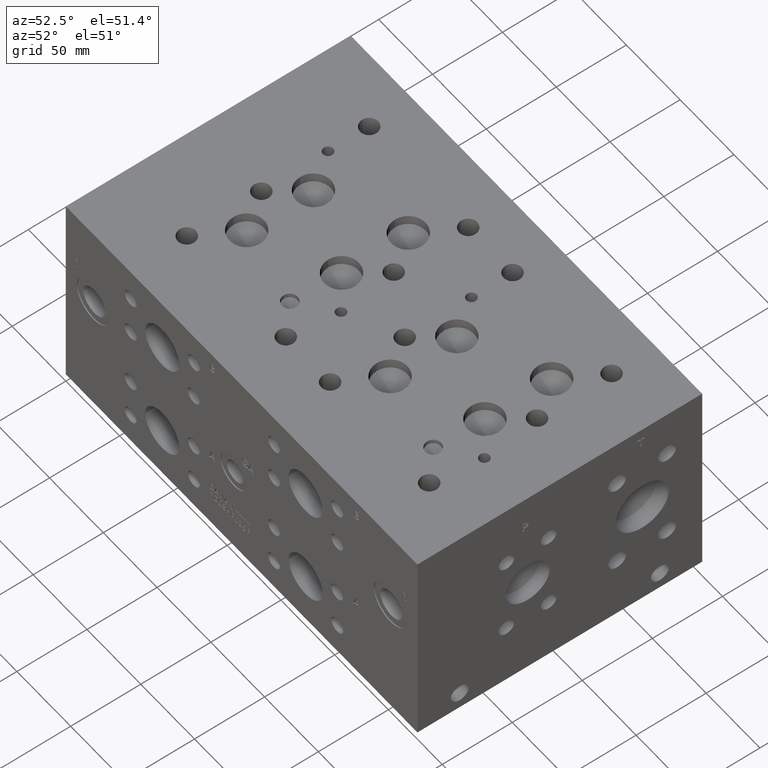
[diagram: clean part render]
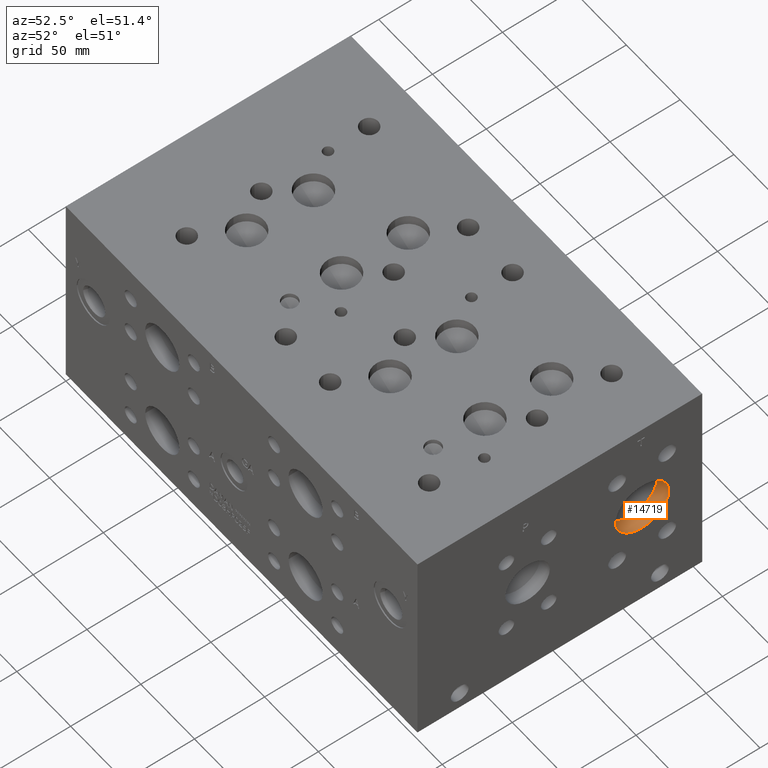
[diagram: same view with one face highlighted and labeled with its STEP entity id]
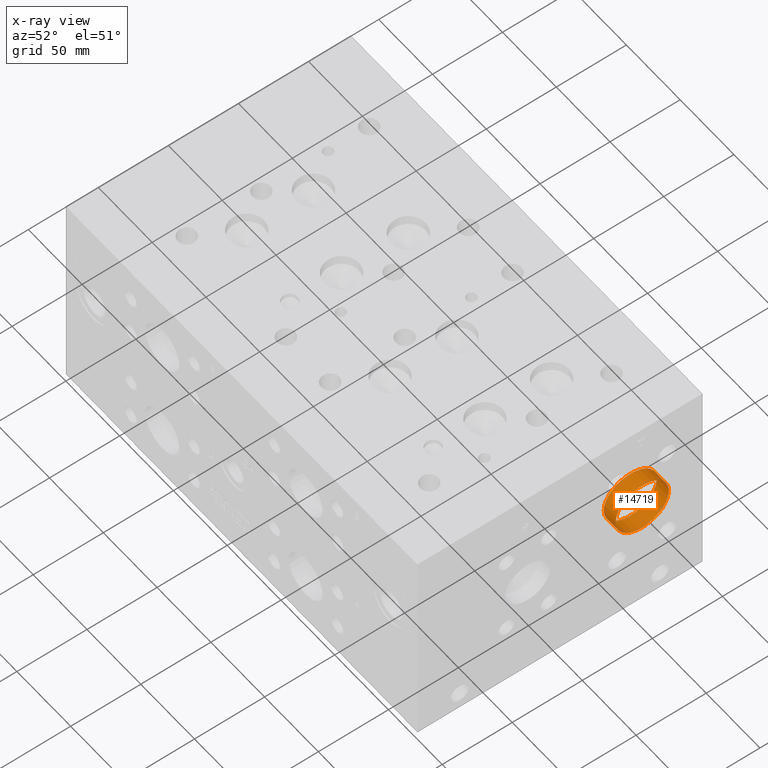
[diagram: x-ray of the same camera — body ghosted, the highlighted face saturated]
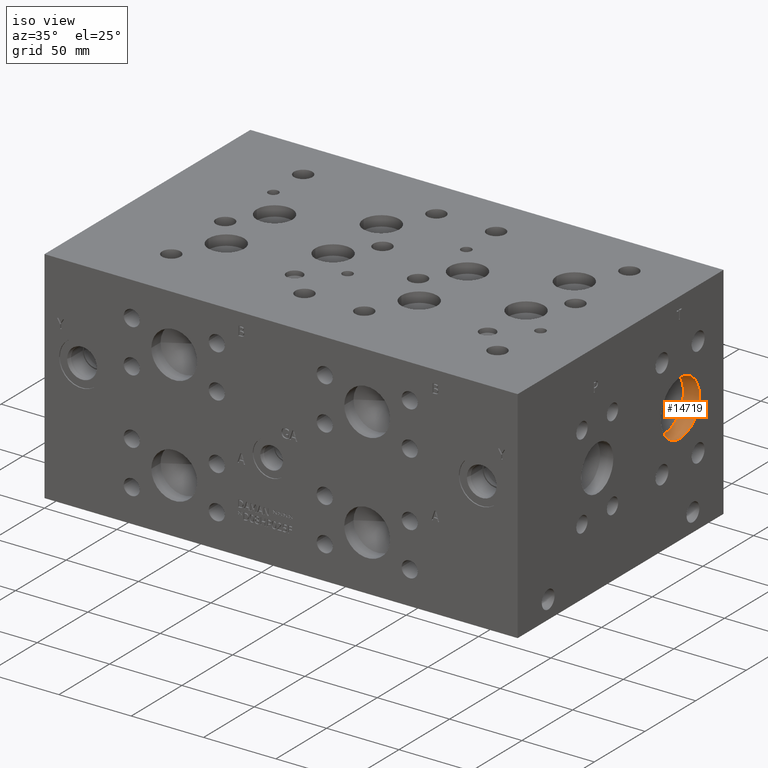
[diagram: same view with one face highlighted and labeled with its STEP entity id]
A machine part, auxiliary view. The second image highlights one B-rep face of the part: STEP entity #14719.
The next image is the same camera in x-ray: the body ghosted, the highlighted face saturated — about 0% of this face is hidden behind the body in this view.
A second angle (iso view) of the same face is appended — the face is thin or edge-on in the first view.
In plain terms, the highlighted cylindrical surface (bore or boss wall) has radius 19.05 mm, axis along (1, 0, 0).
Its self-contained STEP definition (entity closure, byte-faithful):
#35=CYLINDRICAL_SURFACE('',#15507,19.05);
#229=CIRCLE('',#14975,19.05);
#230=CIRCLE('',#14976,19.05);
#375=CIRCLE('',#15505,19.05);
#376=CIRCLE('',#15506,19.05);
#1842=FACE_OUTER_BOUND('',#2723,.T.);
#2723=EDGE_LOOP('',(#12407,#12408,#12409,#12410,#12411,#12412));
#4125=LINE('',#24666,#5407);
#5407=VECTOR('',#18258,19.05);
#5927=VERTEX_POINT('',#19781);
#5928=VERTEX_POINT('',#19782);
#6958=VERTEX_POINT('',#24659);
#6959=VERTEX_POINT('',#24660);
#7407=EDGE_CURVE('',#5927,#5928,#229,.T.);
#7408=EDGE_CURVE('',#5928,#5927,#230,.T.);
#8896=EDGE_CURVE('',#6958,#6959,#375,.T.);
#8898=EDGE_CURVE('',#6959,#6958,#376,.T.);
#8899=EDGE_CURVE('',#5928,#6959,#4125,.T.);
#12407=ORIENTED_EDGE('',*,*,#7407,.F.);
#12408=ORIENTED_EDGE('',*,*,#7408,.F.);
#12409=ORIENTED_EDGE('',*,*,#8899,.T.);
#12410=ORIENTED_EDGE('',*,*,#8896,.F.);
#12411=ORIENTED_EDGE('',*,*,#8898,.F.);
#12412=ORIENTED_EDGE('',*,*,#8899,.F.);
#14719=ADVANCED_FACE('',(#1842),#35,.F.);
#14975=AXIS2_PLACEMENT_3D('',#19783,#16130,#16131);
#14976=AXIS2_PLACEMENT_3D('',#19784,#16132,#16133);
#15505=AXIS2_PLACEMENT_3D('',#24661,#18251,#18252);
#15506=AXIS2_PLACEMENT_3D('',#24664,#18254,#18255);
#15507=AXIS2_PLACEMENT_3D('',#24665,#18256,#18257);
#16130=DIRECTION('center_axis',(-1.,0.,0.));
#16131=DIRECTION('ref_axis',(0.,1.,0.));
#16132=DIRECTION('center_axis',(-1.,0.,0.));
#16133=DIRECTION('ref_axis',(0.,1.,0.));
#18251=DIRECTION('center_axis',(1.,0.,0.));
#18252=DIRECTION('ref_axis',(0.,1.,0.));
#18254=DIRECTION('center_axis',(1.,0.,0.));
#18255=DIRECTION('ref_axis',(0.,1.,0.));
#18256=DIRECTION('center_axis',(1.,0.,0.));
#18257=DIRECTION('ref_axis',(0.,1.,0.));
#18258=DIRECTION('',(-1.,0.,0.));
#19781=CARTESIAN_POINT('',(327.025,179.4002,82.55));
#19782=CARTESIAN_POINT('',(327.025,141.3002,82.55));
#19783=CARTESIAN_POINT('Origin',(327.025,160.3502,82.55));
#19784=CARTESIAN_POINT('Origin',(327.025,160.3502,82.55));
#24659=CARTESIAN_POINT('',(316.02648,179.4002,82.55));
#24660=CARTESIAN_POINT('',(316.02648,141.3002,82.55));
#24661=CARTESIAN_POINT('Origin',(316.02648,160.3502,82.55));
#24664=CARTESIAN_POINT('Origin',(316.02648,160.3502,82.55));
#24665=CARTESIAN_POINT('Origin',(321.52574,160.3502,82.55));
#24666=CARTESIAN_POINT('',(321.52574,141.3002,82.55));